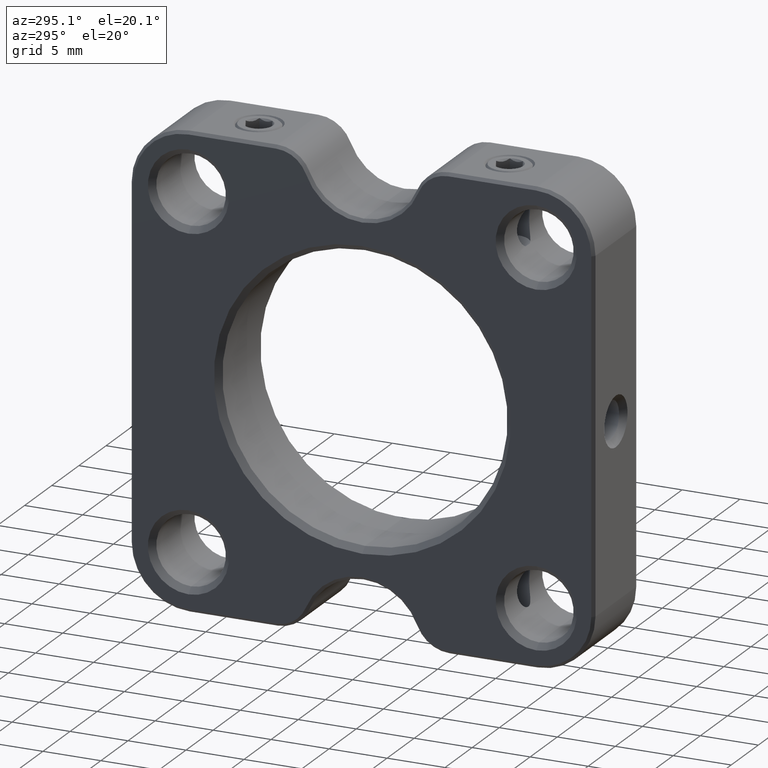
[diagram: clean part render]
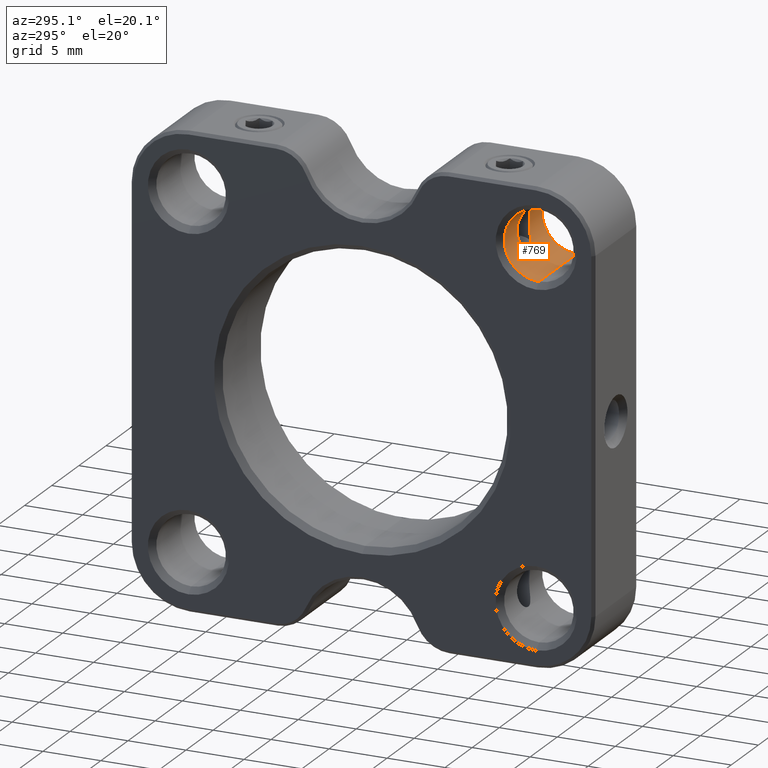
[diagram: same view with one face highlighted and labeled with its STEP entity id]
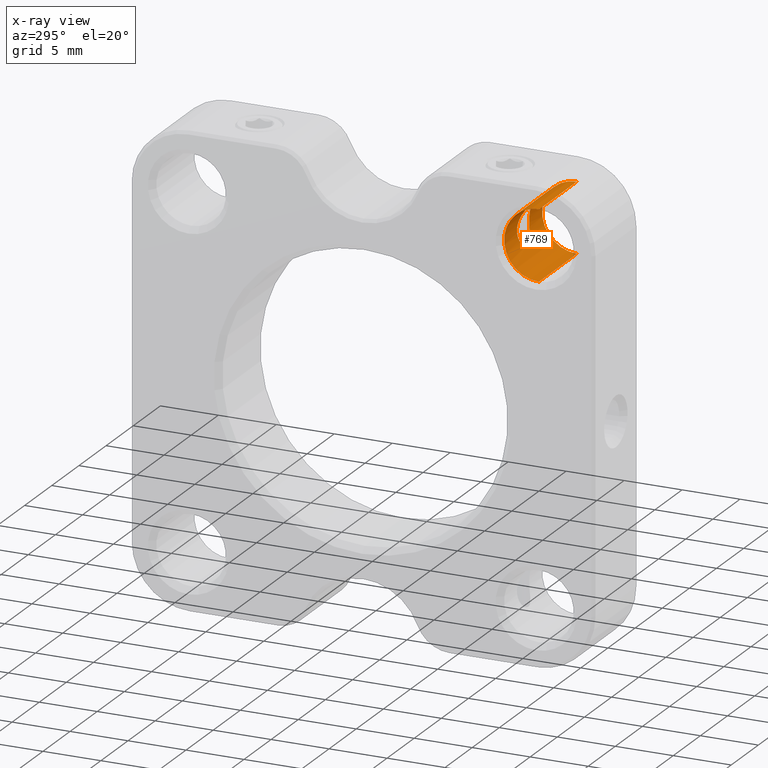
[diagram: x-ray of the same camera — body ghosted, the highlighted face saturated]
A machine part, auxiliary view. The second image highlights one B-rep face of the part: STEP entity #769.
The next image is the same camera in x-ray: the body ghosted, the highlighted face saturated — about 1% of this face is hidden behind the body in this view.
In plain terms, the highlighted cylindrical surface (partial cylindrical patch) has radius 3 mm, axis along (1, -0, -0).
Its self-contained STEP definition (entity closure, byte-faithful):
#49 = DIRECTION ( 'NONE',  ( 0.000000000000000000, 0.000000000000000000, -1.000000000000000000 ) ) ;
#259 = CARTESIAN_POINT ( 'NONE',  ( -13.64500888286690738, -9.953166811194575914, 54.37024911480246914 ) ) ;
#310 = ORIENTED_EDGE ( 'NONE', *, *, #6248, .T. ) ;
#315 = CARTESIAN_POINT ( 'NONE',  ( -15.33745885246667662, -10.22392413737245498, 56.37714905324880732 ) ) ;
#522 = ORIENTED_EDGE ( 'NONE', *, *, #3463, .T. ) ;
#728 = ORIENTED_EDGE ( 'NONE', *, *, #4777, .F. ) ;
#769 = ADVANCED_FACE ( 'NONE', ( #5360, #7779 ), #3835, .F. ) ;
#812 = AXIS2_PLACEMENT_3D ( 'NONE', #5411, #2338, #1784 ) ;
#913 = CARTESIAN_POINT ( 'NONE',  ( -15.63838352948489252, -10.05856859395252556, 55.99966634695699952 ) ) ;
#946 = CARTESIAN_POINT ( 'NONE',  ( -11.20960063692995767, -12.89069877659088981, 58.00000000000000711 ) ) ;
#962 = CARTESIAN_POINT ( 'NONE',  ( -13.57232532395628155, -9.886270108904030351, 55.03900217217038460 ) ) ;
#1044 = CARTESIAN_POINT ( 'NONE',  ( -18.70960063692994879, -12.89069877659088981, 58.00000000000000711 ) ) ;
#1370 = LINE ( 'NONE', #1044, #3355 ) ;
#1470 = CARTESIAN_POINT ( 'NONE',  ( -13.61126857514714139, -9.922271495323800039, 54.53490364191063122 ) ) ;
#1491 = CARTESIAN_POINT ( 'NONE',  ( -15.77306066926962025, -9.954112695163955138, 54.36613146744938518 ) ) ;
#1512 = CARTESIAN_POINT ( 'NONE',  ( -13.57505583098314084, -9.888994550916395454, 54.86715840995150728 ) ) ;
#1531 = CARTESIAN_POINT ( 'NONE',  ( -13.82811758986586526, -10.09026060005904313, 53.91563520749172511 ) ) ;
#1571 = CARTESIAN_POINT ( 'NONE',  ( -15.25133609942801982, -10.25073359613875112, 53.57396481602573601 ) ) ;
#1596 = CARTESIAN_POINT ( 'NONE',  ( -15.43697051555606414, -10.17284784411929444, 53.72805541698715359 ) ) ;
#1640 = CARTESIAN_POINT ( 'NONE',  ( -18.20960063692994169, -12.89069877659088981, 58.00000000000000711 ) ) ;
#1784 = DIRECTION ( 'NONE',  ( 0.000000000000000000, 0.000000000000000000, -1.000000000000000000 ) ) ;
#1856 = AXIS2_PLACEMENT_3D ( 'NONE', #6776, #7387, #49 ) ;
#1981 = CARTESIAN_POINT ( 'NONE',  ( -14.31420188204085164, -10.29262256523757735, 53.50000000000001421 ) ) ;
#1988 = DIRECTION ( 'NONE',  ( 1.000000000000000000, -0.000000000000000000, -0.000000000000000000 ) ) ;
#2034 = VERTEX_POINT ( 'NONE', #7829 ) ;
#2088 = CARTESIAN_POINT ( 'NONE',  ( -15.66504091560526035, -10.03765677293409198, 54.05900135198915279 ) ) ;
#2133 = EDGE_CURVE ( 'NONE', #5680, #2034, #4667, .T. ) ;
#2136 = CARTESIAN_POINT ( 'NONE',  ( -15.70390784982724952, -10.00878788099551642, 55.84901384100074750 ) ) ;
#2191 = CARTESIAN_POINT ( 'NONE',  ( -14.84352352557233523, -10.30888291593327821, 53.47183624644616629 ) ) ;
#2281 = CARTESIAN_POINT ( 'NONE',  ( -15.12244533176194849, -10.28997384498571144, 56.49609038929401805 ) ) ;
#2317 = EDGE_CURVE ( 'NONE', #2034, #4307, #6546, .T. ) ;
#2338 = DIRECTION ( 'NONE',  ( 1.000000000000000000, 0.000000000000000000, 0.000000000000000000 ) ) ;
#2587 = VERTEX_POINT ( 'NONE', #2951 ) ;
#2698 = CIRCLE ( 'NONE', #812, 2.999999999999995559 ) ;
#2699 = ORIENTED_EDGE ( 'NONE', *, *, #7515, .T. ) ;
#2733 = CARTESIAN_POINT ( 'NONE',  ( -15.79582624167567850, -9.934129376328783678, 55.53379049616487606 ) ) ;
#2804 = CARTESIAN_POINT ( 'NONE',  ( -14.16058633639641151, -10.25470603268471770, 53.56567336082841280 ) ) ;
#2951 = CARTESIAN_POINT ( 'NONE',  ( -15.10499939181904594, -10.29262256523757735, 53.50000000000001421 ) ) ;
#3222 = CARTESIAN_POINT ( 'NONE',  ( -18.70960063692994879, -12.89069877659088981, 52.00000000000002132 ) ) ;
#3299 = CARTESIAN_POINT ( 'NONE',  ( -13.71800230406092247, -10.01087111988357670, 55.85621468401438960 ) ) ;
#3326 = DIRECTION ( 'NONE',  ( 1.000000000000000000, -0.000000000000000000, -0.000000000000000000 ) ) ;
#3334 = ORIENTED_EDGE ( 'NONE', *, *, #2133, .T. ) ;
#3355 = VECTOR ( 'NONE', #6587, 1000.000000000000000 ) ;
#3429 = CARTESIAN_POINT ( 'NONE',  ( -14.37585581202540297, -10.31359046092443776, 56.53835515481569729 ) ) ;
#3458 = EDGE_LOOP ( 'NONE', ( #728, #3334, #4223, #310 ) ) ;
#3463 = EDGE_CURVE ( 'NONE', #5364, #2587, #6308, .T. ) ;
#3487 = VERTEX_POINT ( 'NONE', #946 ) ;
#3633 = EDGE_LOOP ( 'NONE', ( #2699, #522 ) ) ;
#3835 = CYLINDRICAL_SURFACE ( 'NONE', #4331, 2.999999999999995559 ) ;
#3972 = CARTESIAN_POINT ( 'NONE',  ( -14.31420188204085164, -10.29262256523757735, 53.50000000000001421 ) ) ;
#3975 = CARTESIAN_POINT ( 'NONE',  ( -15.45597692791376510, -10.16603871403205694, 56.26353540518121576 ) ) ;
#3994 = CARTESIAN_POINT ( 'NONE',  ( -13.59706721609326507, -9.909327241575116574, 55.37354592602561354 ) ) ;
#4021 = CARTESIAN_POINT ( 'NONE',  ( -13.75318280911489843, -10.03696995278558290, 54.06089828808855202 ) ) ;
#4223 = ORIENTED_EDGE ( 'NONE', *, *, #2317, .T. ) ;
#4307 = VERTEX_POINT ( 'NONE', #4963 ) ;
#4331 = AXIS2_PLACEMENT_3D ( 'NONE', #4549, #3326, #7831 ) ;
#4531 = CARTESIAN_POINT ( 'NONE',  ( -13.78354998335881554, -10.06051513583039991, 56.00520071140455514 ) ) ;
#4548 = CARTESIAN_POINT ( 'NONE',  ( -15.84700679336095419, -9.886142291274934379, 55.03365553600281146 ) ) ;
#4549 = CARTESIAN_POINT ( 'NONE',  ( -18.70960063692994879, -12.89069877659088981, 55.00000000000001421 ) ) ;
#4667 = CIRCLE ( 'NONE', #1856, 2.999999999999995559 ) ;
#4672 = CARTESIAN_POINT ( 'NONE',  ( -13.96837034900570096, -10.16871918622109483, 56.26932857064152671 ) ) ;
#4777 = EDGE_CURVE ( 'NONE', #5680, #3487, #1370, .T. ) ;
#4779 = CARTESIAN_POINT ( 'NONE',  ( -14.79918710278007410, -10.34042078626965200, 56.57989950121189082 ) ) ;
#4926 = VECTOR ( 'NONE', #1988, 1000.000000000000000 ) ;
#4963 = CARTESIAN_POINT ( 'NONE',  ( -11.20960063692995767, -12.89069877659088981, 52.00000000000002132 ) ) ;
#5157 = CARTESIAN_POINT ( 'NONE',  ( -15.82261867112496745, -9.908881364318990137, 55.37048250758966361 ) ) ;
#5250 = CARTESIAN_POINT ( 'NONE',  ( -14.31420188204085164, -10.29262256523757735, 53.50000000000001421 ) ) ;
#5305 = CARTESIAN_POINT ( 'NONE',  ( -15.10499939181904594, -10.29262256523757735, 53.50000000000001421 ) ) ;
#5360 = FACE_OUTER_BOUND ( 'NONE', #3458, .T. ) ;
#5364 = VERTEX_POINT ( 'NONE', #1981 ) ;
#5411 = CARTESIAN_POINT ( 'NONE',  ( -11.20960063692995767, -12.89069877659088981, 55.00000000000001421 ) ) ;
#5680 = VERTEX_POINT ( 'NONE', #1640 ) ;
#5793 = CARTESIAN_POINT ( 'NONE',  ( -14.03126675738226936, -10.19922415185929765, 53.66798448648883380 ) ) ;
#5929 = CARTESIAN_POINT ( 'NONE',  ( -15.04636595012644129, -10.30804116566599937, 56.52659282119717687 ) ) ;
#5991 = CARTESIAN_POINT ( 'NONE',  ( -14.88455122628108462, -10.33344025684796108, 56.56876857445615059 ) ) ;
#6248 = EDGE_CURVE ( 'NONE', #4307, #3487, #2698, .T. ) ;
#6308 = B_SPLINE_CURVE_WITH_KNOTS ( 'NONE', 3,
 ( #5250, #6535, #2191, #5305 ),
 .UNSPECIFIED., .F., .F.,
 ( 4, 4 ),
 ( 0.0005648106053424812277, 0.001354004834273597052 ),
 .UNSPECIFIED. ) ;
#6394 = CARTESIAN_POINT ( 'NONE',  ( -15.18175395498310110, -10.27367743256509414, 53.53281393234490082 ) ) ;
#6472 = CARTESIAN_POINT ( 'NONE',  ( -15.58968512219900049, -10.09115673512454059, 53.91335782723462700 ) ) ;
#6535 = CARTESIAN_POINT ( 'NONE',  ( -14.57529265171211996, -10.30885896800470647, 53.47187772547518847 ) ) ;
#6546 = LINE ( 'NONE', #3222, #4926 ) ;
#6587 = DIRECTION ( 'NONE',  ( 1.000000000000000000, -0.000000000000000000, -0.000000000000000000 ) ) ;
#6776 = CARTESIAN_POINT ( 'NONE',  ( -18.20960063692994169, -12.89069877659088981, 55.00000000000001421 ) ) ;
#6917 = CARTESIAN_POINT ( 'NONE',  ( -15.10499939181904594, -10.29262256523757735, 53.50000000000001421 ) ) ;
#6966 = CARTESIAN_POINT ( 'NONE',  ( -15.37869519850812594, -10.20049956384602652, 53.67115813744482722 ) ) ;
#7066 = CARTESIAN_POINT ( 'NONE',  ( -15.84405949056606389, -9.889084616801257610, 54.86422189423996087 ) ) ;
#7102 = CARTESIAN_POINT ( 'NONE',  ( -14.54625362775548680, -10.34122945819662753, 56.58120436438564127 ) ) ;
#7387 = DIRECTION ( 'NONE',  ( -1.000000000000000000, -0.000000000000000000, -0.000000000000000000 ) ) ;
#7515 = EDGE_CURVE ( 'NONE', #2587, #5364, #7718, .T. ) ;
#7613 = CARTESIAN_POINT ( 'NONE',  ( -13.62445635263214072, -9.935119988238838573, 55.53950434965955907 ) ) ;
#7616 = CARTESIAN_POINT ( 'NONE',  ( -15.80721704471231526, -9.922917805001421954, 54.53053289473604792 ) ) ;
#7718 = B_SPLINE_CURVE_WITH_KNOTS ( 'NONE', 3,
 ( #6917, #6394, #1571, #6966, #1596, #6472, #2088, #1491, #7616, #7066, #4548, #5157, #2733, #2136, #913, #3975, #315, #2281, #5929, #5991, #4779, #7102, #3429, #7748, #4672, #4531, #3299, #7613, #3994, #962, #1512, #1470, #259, #4021, #1531, #5793, #2804, #3972 ),
 .UNSPECIFIED., .F., .F.,
 ( 4, 2, 2, 2, 2, 2, 2, 2, 2, 2, 2, 2, 2, 2, 2, 2, 2, 2, 4 ),
 ( 1.734723475976807094E-18, 0.0002515376885659055474, 0.0005030753771318093601, 0.001006150754263618287, 0.001509226131395427105, 0.002012301508527236139, 0.002515376885659044957, 0.003018452262790853775, 0.003521527639922662593, 0.003773065328488567870, 0.004024603017054472279, 0.004527678394186280229, 0.005030753771318089915, 0.005533829148449899600, 0.006036904525581708418, 0.006539979902713518103, 0.007043055279845326921, 0.007546130656977137474, 0.008049206034108946292 ),
 .UNSPECIFIED. ) ;
#7748 = CARTESIAN_POINT ( 'NONE',  ( -14.08767288158545661, -10.22639695473713850, 56.38185370249240691 ) ) ;
#7779 = FACE_BOUND ( 'NONE', #3633, .T. ) ;
#7829 = CARTESIAN_POINT ( 'NONE',  ( -18.20960063692994169, -12.89069877659088981, 52.00000000000002132 ) ) ;
#7831 = DIRECTION ( 'NONE',  ( 0.000000000000000000, 0.000000000000000000, -1.000000000000000000 ) ) ;